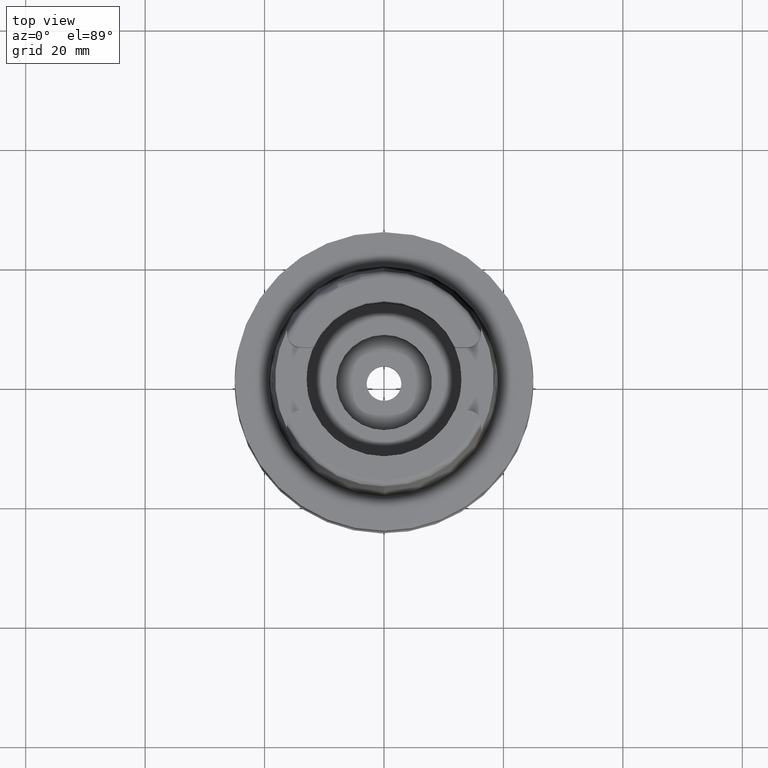
[diagram: clean part render]
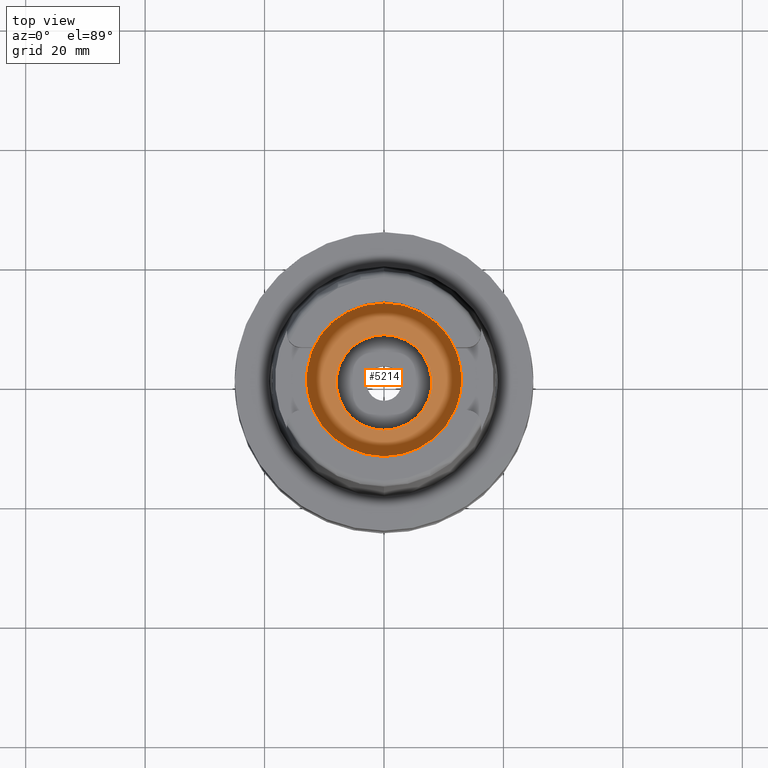
[diagram: same view with one face highlighted and labeled with its STEP entity id]
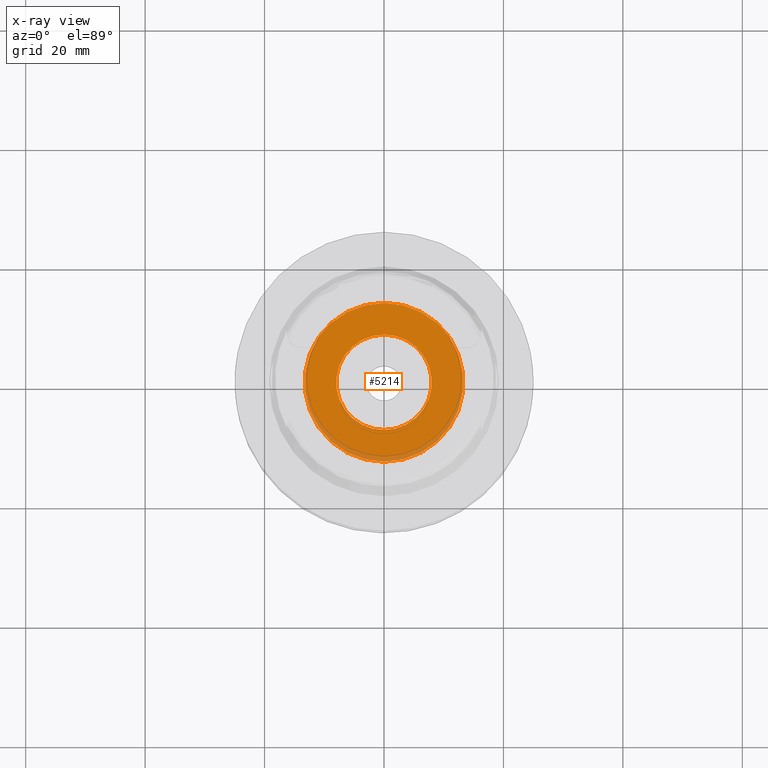
[diagram: x-ray of the same camera — body ghosted, the highlighted face saturated]
A machine part, top view. The second image highlights one B-rep face of the part: STEP entity #5214.
The next image is the same camera in x-ray: the body ghosted, the highlighted face saturated — about 9% of this face is hidden behind the body in this view.
In plain terms, the highlighted planar face has unit normal (0, 0, 1).
Its self-contained STEP definition (entity closure, byte-faithful):
#65 = DIRECTION ( 'NONE',  ( 0.0000000000000000000, 0.0000000000000000000, 1.000000000000000000 ) ) ;
#75 = EDGE_CURVE ( 'NONE', #2264, #5113, #919, .T. ) ;
#90 = CIRCLE ( 'NONE', #2106, 8.000000000000000000 ) ;
#99 = DIRECTION ( 'NONE',  ( 1.000000000000000000, 0.0000000000000000000, 0.0000000000000000000 ) ) ;
#191 = AXIS2_PLACEMENT_3D ( 'NONE', #4774, #65, #4668 ) ;
#276 = ORIENTED_EDGE ( 'NONE', *, *, #3084, .F. ) ;
#458 = CARTESIAN_POINT ( 'NONE',  ( 0.0000000000000000000, -13.29999999999999893, -9.950000000000001066 ) ) ;
#528 = DIRECTION ( 'NONE',  ( 0.0000000000000000000, 0.0000000000000000000, -1.000000000000000000 ) ) ;
#531 = CIRCLE ( 'NONE', #191, 8.000000000000000000 ) ;
#556 = CARTESIAN_POINT ( 'NONE',  ( 0.0000000000000000000, 0.0000000000000000000, -9.950000000000001066 ) ) ;
#876 = FACE_OUTER_BOUND ( 'NONE', #2051, .T. ) ;
#919 = CIRCLE ( 'NONE', #4030, 13.29999999999999893 ) ;
#961 = PLANE ( 'NONE',  #4099 ) ;
#1094 = EDGE_CURVE ( 'NONE', #3586, #5394, #90, .T. ) ;
#1585 = EDGE_LOOP ( 'NONE', ( #4355, #3089 ) ) ;
#1699 = DIRECTION ( 'NONE',  ( 0.0000000000000000000, 0.0000000000000000000, 1.000000000000000000 ) ) ;
#2051 = EDGE_LOOP ( 'NONE', ( #3322, #276 ) ) ;
#2106 = AXIS2_PLACEMENT_3D ( 'NONE', #2474, #1699, #5444 ) ;
#2264 = VERTEX_POINT ( 'NONE', #2703 ) ;
#2474 = CARTESIAN_POINT ( 'NONE',  ( 0.0000000000000000000, 0.0000000000000000000, -9.950000000000001066 ) ) ;
#2703 = CARTESIAN_POINT ( 'NONE',  ( 0.0000000000000000000, 13.29999999999999893, -9.950000000000001066 ) ) ;
#2716 = DIRECTION ( 'NONE',  ( 0.0000000000000000000, -1.000000000000000000, 0.0000000000000000000 ) ) ;
#2845 = FACE_BOUND ( 'NONE', #1585, .T. ) ;
#2939 = CARTESIAN_POINT ( 'NONE',  ( 0.0000000000000000000, -8.000000000000000000, -9.950000000000001066 ) ) ;
#3023 = DIRECTION ( 'NONE',  ( 0.0000000000000000000, 0.0000000000000000000, 1.000000000000000000 ) ) ;
#3058 = CARTESIAN_POINT ( 'NONE',  ( 0.0000000000000000000, 0.0000000000000000000, -9.950000000000001066 ) ) ;
#3084 = EDGE_CURVE ( 'NONE', #5113, #2264, #3943, .T. ) ;
#3089 = ORIENTED_EDGE ( 'NONE', *, *, #1094, .F. ) ;
#3322 = ORIENTED_EDGE ( 'NONE', *, *, #75, .F. ) ;
#3512 = DIRECTION ( 'NONE',  ( 0.0000000000000000000, 0.0000000000000000000, -1.000000000000000000 ) ) ;
#3586 = VERTEX_POINT ( 'NONE', #2939 ) ;
#3639 = AXIS2_PLACEMENT_3D ( 'NONE', #556, #528, #2716 ) ;
#3865 = CARTESIAN_POINT ( 'NONE',  ( 0.0000000000000000000, 0.0000000000000000000, -9.950000000000001066 ) ) ;
#3873 = DIRECTION ( 'NONE',  ( 0.0000000000000000000, 1.000000000000000000, 0.0000000000000000000 ) ) ;
#3943 = CIRCLE ( 'NONE', #3639, 13.29999999999999893 ) ;
#4030 = AXIS2_PLACEMENT_3D ( 'NONE', #3058, #3512, #3873 ) ;
#4099 = AXIS2_PLACEMENT_3D ( 'NONE', #3865, #3023, #99 ) ;
#4187 = EDGE_CURVE ( 'NONE', #5394, #3586, #531, .T. ) ;
#4355 = ORIENTED_EDGE ( 'NONE', *, *, #4187, .F. ) ;
#4668 = DIRECTION ( 'NONE',  ( 0.0000000000000000000, 1.000000000000000000, 0.0000000000000000000 ) ) ;
#4774 = CARTESIAN_POINT ( 'NONE',  ( 0.0000000000000000000, 0.0000000000000000000, -9.950000000000001066 ) ) ;
#4867 = CARTESIAN_POINT ( 'NONE',  ( 0.0000000000000000000, 8.000000000000000000, -9.950000000000001066 ) ) ;
#5113 = VERTEX_POINT ( 'NONE', #458 ) ;
#5214 = ADVANCED_FACE ( 'NONE', ( #876, #2845 ), #961, .T. ) ;
#5394 = VERTEX_POINT ( 'NONE', #4867 ) ;
#5444 = DIRECTION ( 'NONE',  ( 0.0000000000000000000, -1.000000000000000000, 0.0000000000000000000 ) ) ;